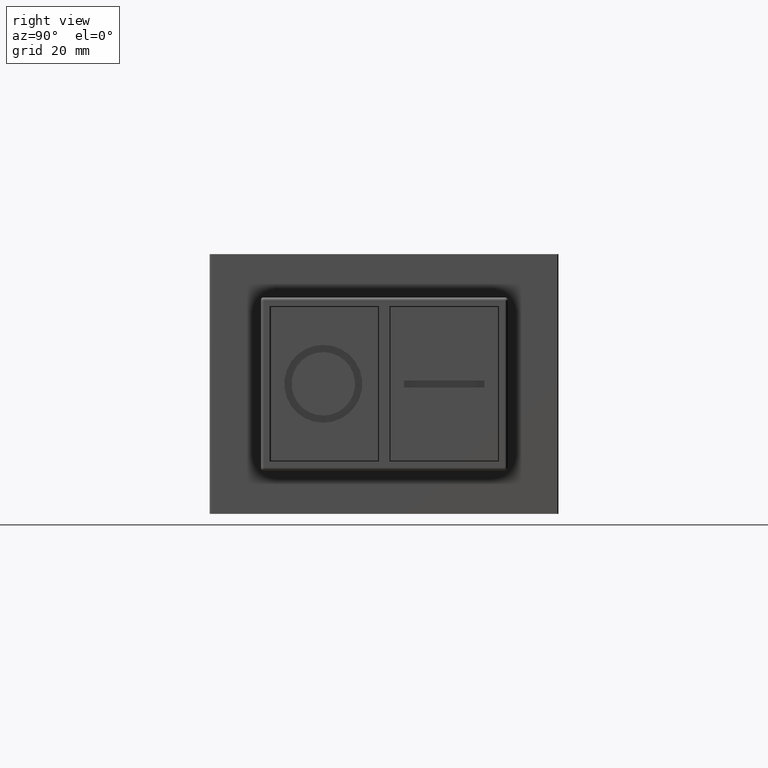
[diagram: clean part render]
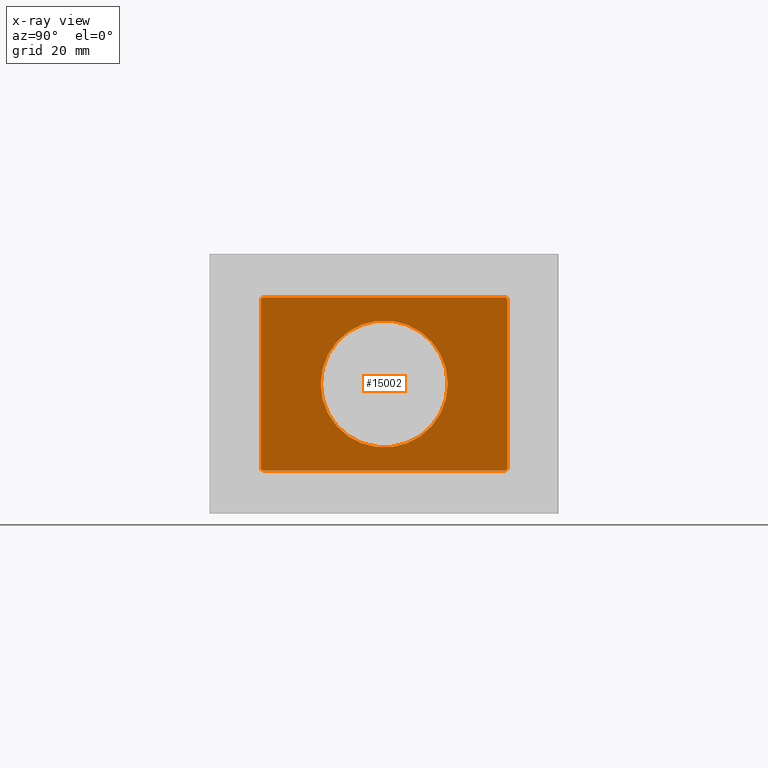
[diagram: x-ray — body ghosted, one internal face saturated and labeled with its STEP entity id]
A machine part, right view, then the same camera in x-ray: the body is ghosted and one INTERNAL B-rep face — a face not visible from any outside direction — is saturated and labeled: STEP entity #15002.
In plain terms, the highlighted planar face has unit normal (-1, 0, 0).
Its self-contained STEP definition (entity closure, byte-faithful):
#13720=CARTESIAN_POINT('',(-8.439384027103658,20.843314320504650,-15.000000000000002));
#13721=VERTEX_POINT('',#13720);
#13728=CARTESIAN_POINT('',(-8.439384027103658,21.343314320504646,-14.500000000000004));
#13729=VERTEX_POINT('',#13728);
#13730=CARTESIAN_POINT('',(-8.439384027103658,20.843314320504653,-14.500000000000009));
#13731=DIRECTION('',(-1.0,0.0,0.0));
#13732=DIRECTION('',(0.0,1.0,0.0));
#13733=AXIS2_PLACEMENT_3D('',#13730,#13731,#13732);
#13734=CIRCLE('',#13733,0.499999999999994);
#13735=EDGE_CURVE('',#13729,#13721,#13734,.T.);
#13752=CARTESIAN_POINT('',(-8.439384027103658,-20.906685679495357,-14.999999999999996));
#13753=VERTEX_POINT('',#13752);
#13760=CARTESIAN_POINT('',(-8.439384027103658,20.843314320504650,-15.000000000000002));
#13761=DIRECTION('',(0.0,-1.0,0.0));
#13762=VECTOR('',#13761,41.750000000000007);
#13763=LINE('',#13760,#13762);
#13764=EDGE_CURVE('',#13721,#13753,#13763,.T.);
#13776=CARTESIAN_POINT('',(-8.439384027103658,-21.406685679495357,-14.499999999999995));
#13777=VERTEX_POINT('',#13776);
#13784=CARTESIAN_POINT('',(-8.439384027103658,-20.906685679495361,-14.500000000000000));
#13785=DIRECTION('',(-1.0,0.0,0.0));
#13786=DIRECTION('',(0.0,0.0,-1.0));
#13787=AXIS2_PLACEMENT_3D('',#13784,#13785,#13786);
#13788=CIRCLE('',#13787,0.499999999999996);
#13789=EDGE_CURVE('',#13753,#13777,#13788,.T.);
#13801=CARTESIAN_POINT('',(-8.439384027103658,-21.406685679495357,14.499999999999995));
#13802=VERTEX_POINT('',#13801);
#13809=CARTESIAN_POINT('',(-8.439384027103658,-21.406685679495357,-14.499999999999995));
#13810=DIRECTION('',(0.0,0.0,1.0));
#13811=VECTOR('',#13810,28.999999999999989);
#13812=LINE('',#13809,#13811);
#13813=EDGE_CURVE('',#13777,#13802,#13812,.T.);
#14380=CARTESIAN_POINT('',(-8.439384027103658,-20.906685679495368,14.999999999999991));
#14381=VERTEX_POINT('',#14380);
#14388=CARTESIAN_POINT('',(-8.439384027103658,-20.906685679495375,14.500000000000011));
#14389=DIRECTION('',(-1.0,0.0,0.0));
#14390=DIRECTION('',(0.0,-1.0,0.0));
#14391=AXIS2_PLACEMENT_3D('',#14388,#14389,#14390);
#14392=CIRCLE('',#14391,0.499999999999980);
#14393=EDGE_CURVE('',#13802,#14381,#14392,.T.);
#14405=CARTESIAN_POINT('',(-8.439384027103658,20.843314320504650,14.999999999999993));
#14406=VERTEX_POINT('',#14405);
#14413=CARTESIAN_POINT('',(-8.439384027103658,-20.906685679495368,14.999999999999991));
#14414=DIRECTION('',(0.0,1.0,0.0));
#14415=VECTOR('',#14414,41.750000000000014);
#14416=LINE('',#14413,#14415);
#14417=EDGE_CURVE('',#14381,#14406,#14416,.T.);
#14429=CARTESIAN_POINT('',(-8.439384027103658,21.343314320504646,14.499999999999995));
#14430=VERTEX_POINT('',#14429);
#14437=CARTESIAN_POINT('',(-8.439384027103658,20.843314320504653,14.500000000000000));
#14438=DIRECTION('',(-1.0,0.0,0.0));
#14439=DIRECTION('',(0.0,0.0,1.0));
#14440=AXIS2_PLACEMENT_3D('',#14437,#14438,#14439);
#14441=CIRCLE('',#14440,0.499999999999994);
#14442=EDGE_CURVE('',#14406,#14430,#14441,.T.);
#14455=CARTESIAN_POINT('',(-8.439384027103658,21.343314320504646,14.499999999999995));
#14456=DIRECTION('',(0.0,0.0,-1.0));
#14457=VECTOR('',#14456,29.0);
#14458=LINE('',#14455,#14457);
#14459=EDGE_CURVE('',#14430,#13729,#14458,.T.);
#14976=CARTESIAN_POINT('',(-8.439384027103658,14.218314320504646,0.0));
#14977=DIRECTION('',(-1.0,0.0,0.0));
#14978=DIRECTION('',(0.0,0.0,1.0));
#14979=AXIS2_PLACEMENT_3D('',#14976,#14977,#14978);
#14980=PLANE('',#14979);
#14981=ORIENTED_EDGE('',*,*,#13764,.T.);
#14982=ORIENTED_EDGE('',*,*,#13789,.T.);
#14983=ORIENTED_EDGE('',*,*,#13813,.T.);
#14984=ORIENTED_EDGE('',*,*,#14393,.T.);
#14985=ORIENTED_EDGE('',*,*,#14417,.T.);
#14986=ORIENTED_EDGE('',*,*,#14442,.T.);
#14987=ORIENTED_EDGE('',*,*,#14459,.T.);
#14988=ORIENTED_EDGE('',*,*,#13735,.T.);
#14989=EDGE_LOOP('',(#14981,#14982,#14983,#14984,#14985,#14986,#14987,#14988));
#14990=FACE_OUTER_BOUND('',#14989,.T.);
#14991=CARTESIAN_POINT('',(-8.439384027103657,-11.031685679495357,1.347067E-015));
#14992=VERTEX_POINT('',#14991);
#14993=CARTESIAN_POINT('',(-8.439384027103657,-0.031685679495357,0.0));
#14994=DIRECTION('',(-1.0,0.0,0.0));
#14995=DIRECTION('',(0.0,1.0,0.0));
#14996=AXIS2_PLACEMENT_3D('',#14993,#14994,#14995);
#14997=CIRCLE('',#14996,11.0);
#14998=EDGE_CURVE('',#14992,#14992,#14997,.T.);
#14999=ORIENTED_EDGE('',*,*,#14998,.F.);
#15000=EDGE_LOOP('',(#14999));
#15001=FACE_BOUND('',#15000,.T.);
#15002=ADVANCED_FACE('',(#14990,#15001),#14980,.T.);